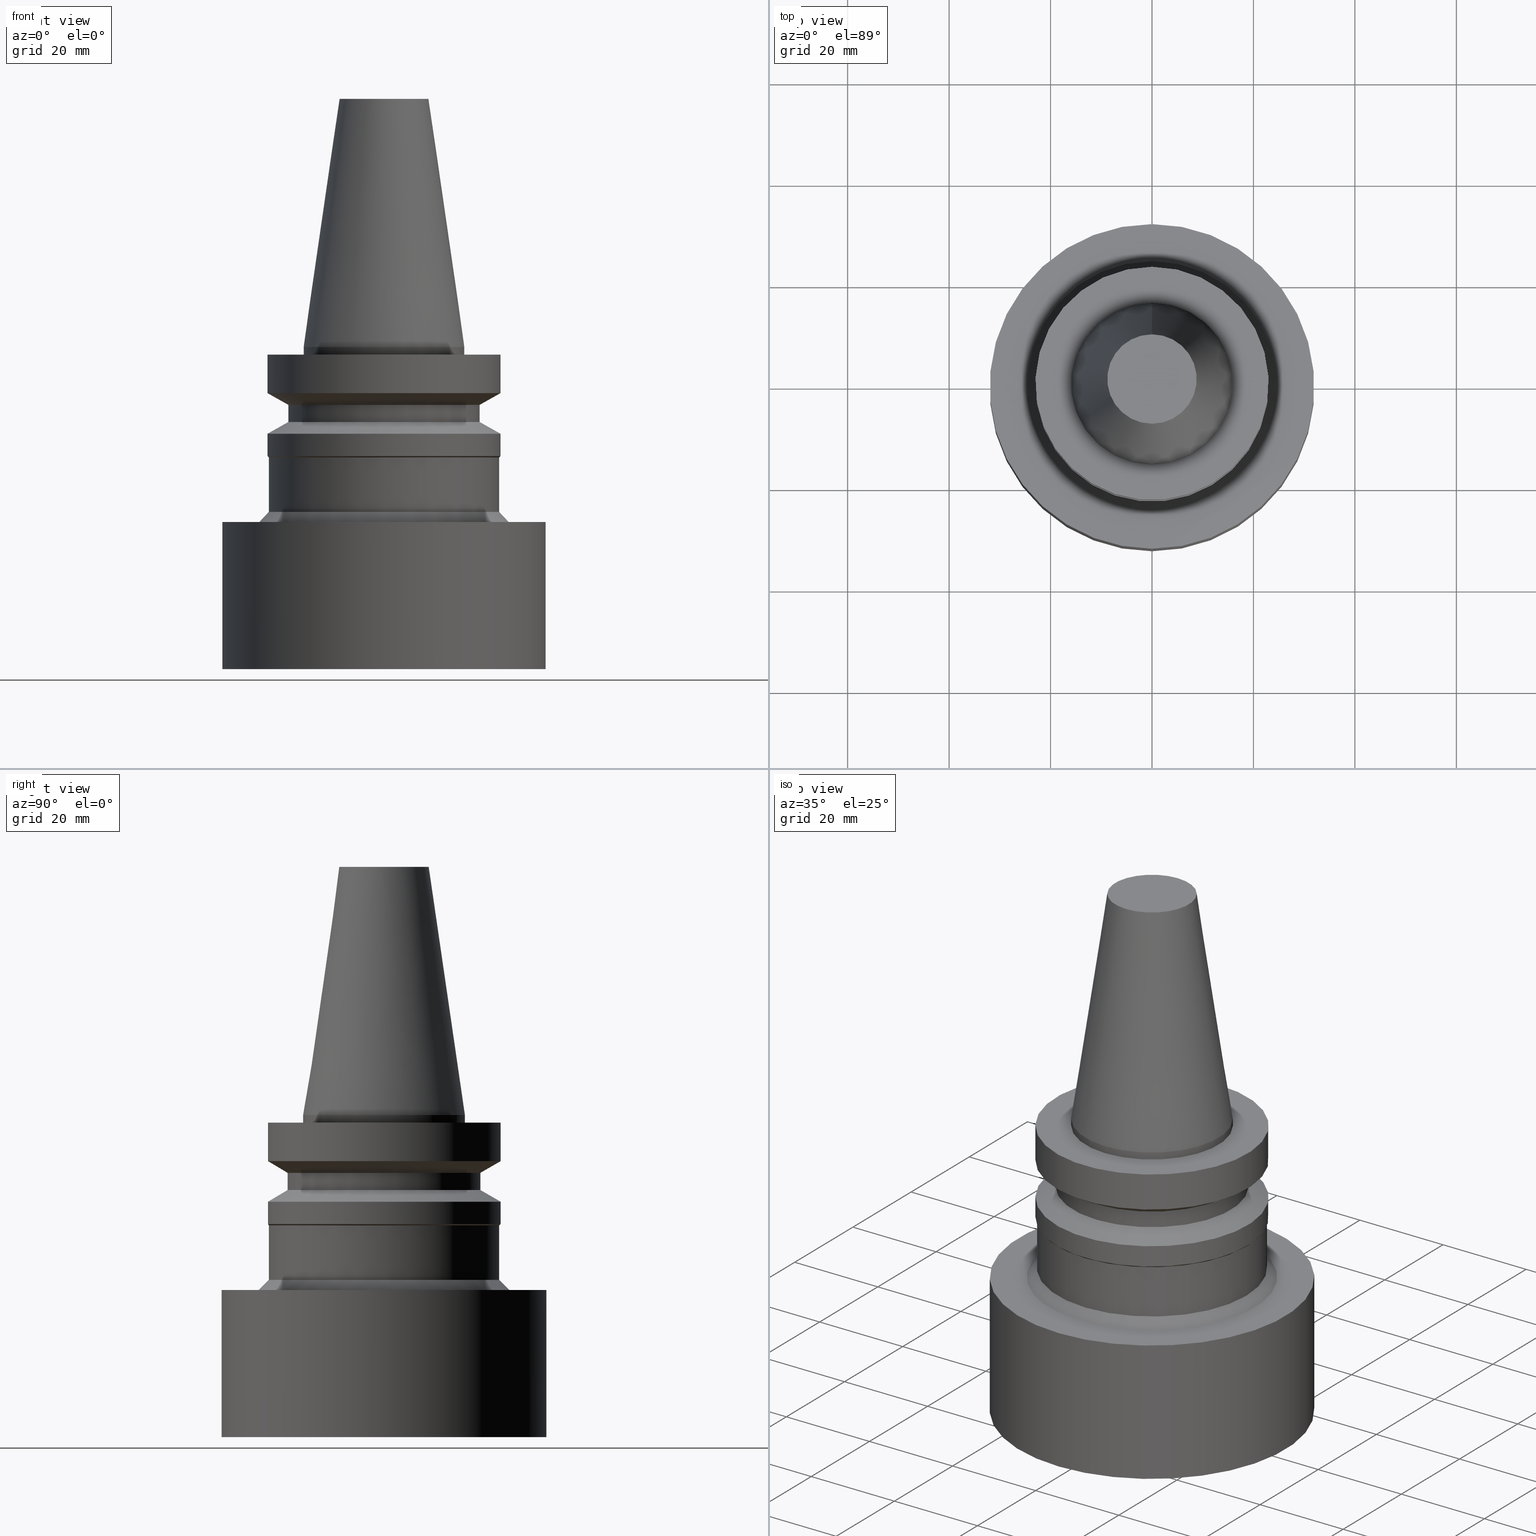
[diagram: canonical four-view strip — front | top / right | iso, engineering-drawing reading convention]
A machine part, canonical four-view strip (front | top / right | iso — engineering-drawing reading convention). The complete STEP part file that produces these views, byte-faithful:
ISO-10303-21;
HEADER;
FILE_DESCRIPTION((''),'1');
FILE_NAME('//Big_tech03/bigt/Translate/21_\X2\8F2A90ED7DDA\X0\-DXF/21_CK\X2\30DC30FC30EA30F330B030B730B930C630E0\X0\/01_CK\X2\30D930FC30B930DB30EB30C0\X0\ CK/BT/BT30/BT30-CK6-135.stp','2012-05-17T04:34:53',(''),(''),'Spatial Interop R18','Kubotek KeyCreator V8.5.1 (14335)',' ');
FILE_SCHEMA(('CONFIG_CONTROL_DESIGN'));
ENDSEC;
DATA;
#1=DESIGN_CONTEXT('',#27,'design');
#2=APPLICATION_PROTOCOL_DEFINITION('INTERNATIONAL STANDARD','config_control_design',1994,#27);
#3=PRODUCT_CATEGORY_RELATIONSHIP('NONE','NONE',#28,#29);
#4=DATE_AND_TIME(#30,#31);
#5=DATE_TIME_ROLE('creation_date');
#6=DATE_TIME_ROLE('classification_date');
#7=PERSON_AND_ORGANIZATION_ROLE('creator');
#8=PERSON_AND_ORGANIZATION_ROLE('design_supplier');
#9=PERSON_AND_ORGANIZATION_ROLE('classification_officer');
#10=PERSON_AND_ORGANIZATION_ROLE('design_owner');
#11=APPROVAL_PERSON_ORGANIZATION(#32,#33,#34);
#12=APPROVAL_DATE_TIME(#4,#33);
#13=CC_DESIGN_APPROVAL(#33,(#35,#36,#37));
#14=CC_DESIGN_DATE_AND_TIME_ASSIGNMENT(#4,#5,(#37));
#15=CC_DESIGN_DATE_AND_TIME_ASSIGNMENT(#4,#6,(#35));
#16=CC_DESIGN_PERSON_AND_ORGANIZATION_ASSIGNMENT(#32,#10,(#38));
#17=CC_DESIGN_PERSON_AND_ORGANIZATION_ASSIGNMENT(#32,#7,(#37));
#18=CC_DESIGN_PERSON_AND_ORGANIZATION_ASSIGNMENT(#32,#7,(#36));
#19=CC_DESIGN_PERSON_AND_ORGANIZATION_ASSIGNMENT(#32,#8,(#36));
#20=CC_DESIGN_SECURITY_CLASSIFICATION(#35,(#36));
#21=CC_DESIGN_PERSON_AND_ORGANIZATION_ASSIGNMENT(#32,#9,(#35));
#22=SHAPE_DEFINITION_REPRESENTATION(#39,#40);
#23= (GEOMETRIC_REPRESENTATION_CONTEXT(3)GLOBAL_UNCERTAINTY_ASSIGNED_CONTEXT((#43))GLOBAL_UNIT_ASSIGNED_CONTEXT((#45,#46,#47))REPRESENTATION_CONTEXT('NONE','WORKSPACE'));
#27=APPLICATION_CONTEXT('CONFIGURATION CONTROLLED 3D DESIGNS OF MECHANICAL PARTS AND ASSEMBLIES');
#28=PRODUCT_CATEGORY('part','NONE');
#29=PRODUCT_RELATED_PRODUCT_CATEGORY('detail',' ',(#38));
#30=CALENDAR_DATE(2012,17,4);
#31=LOCAL_TIME(13,34,53.0,#49);
#32=PERSON_AND_ORGANIZATION(#50,#51);
#33=APPROVAL(#52,'SOLID MODEL');
#34=APPROVAL_ROLE('APPROVED');
#35=SECURITY_CLASSIFICATION('','',#53);
#36=PRODUCT_DEFINITION_FORMATION_WITH_SPECIFIED_SOURCE(' ','NONE',#38,.NOT_KNOWN.);
#37=PRODUCT_DEFINITION('NONE','NONE',#36,#1);
#38=PRODUCT('1','1','PART-1-DESC',(#54));
#39=PRODUCT_DEFINITION_SHAPE('NONE','NONE',#37);
#40=ADVANCED_BREP_SHAPE_REPRESENTATION('1',(#55,#56),#23);
#43=UNCERTAINTY_MEASURE_WITH_UNIT(LENGTH_MEASURE(1.0E-006),#45,'','');
#45= (CONVERSION_BASED_UNIT('MILLIMETRE',#59)LENGTH_UNIT()NAMED_UNIT(#62));
#46= (NAMED_UNIT(#64)PLANE_ANGLE_UNIT()SI_UNIT($,.RADIAN.));
#47= (NAMED_UNIT(#64)SOLID_ANGLE_UNIT()SI_UNIT($,.STERADIAN.));
#49=COORDINATED_UNIVERSAL_TIME_OFFSET(9,0,.AHEAD.);
#50=PERSON('','UNSPECIFIED',$,$,$,$);
#51=ORGANIZATION('UNSPECIFIED','UNSPECIFIED','UNSPECIFIED');
#52=APPROVAL_STATUS('approved');
#53=SECURITY_CLASSIFICATION_LEVEL('unclassified');
#54=MECHANICAL_CONTEXT('',#27,'mechanical');
#55=MANIFOLD_SOLID_BREP('1',#70);
#56=AXIS2_PLACEMENT_3D('',#71,#72,#73);
#59=LENGTH_MEASURE_WITH_UNIT(LENGTH_MEASURE(1.0),#74);
#62=DIMENSIONAL_EXPONENTS(1.0,0.0,0.0,0.0,0.0,0.0,0.0);
#64=DIMENSIONAL_EXPONENTS(0.0,0.0,0.0,0.0,0.0,0.0,0.0);
#70=CLOSED_SHELL('',(#75,#76,#77,#78,#79,#80,#81,#82,#83,#84,#85,#86,#87,#88,#89));
#71=CARTESIAN_POINT('',(0.0,0.0,0.0));
#72=DIRECTION('',(0.0,0.0,1.0));
#73=DIRECTION('',(1.0,0.0,0.0));
#74= (NAMED_UNIT(#62)LENGTH_UNIT()SI_UNIT(.MILLI.,.METRE.));
#75=ADVANCED_FACE('',(#91),#92,.T.);
#76=ADVANCED_FACE('',(#93),#94,.T.);
#77=ADVANCED_FACE('',(#95,#96),#97,.T.);
#78=ADVANCED_FACE('',(#98,#99),#100,.T.);
#79=ADVANCED_FACE('',(#101,#102),#103,.T.);
#80=ADVANCED_FACE('',(#104,#105),#106,.T.);
#81=ADVANCED_FACE('',(#107,#108),#109,.T.);
#82=ADVANCED_FACE('',(#110,#111),#112,.T.);
#83=ADVANCED_FACE('',(#113,#114),#115,.T.);
#84=ADVANCED_FACE('',(#116,#117),#118,.T.);
#85=ADVANCED_FACE('',(#119,#120),#121,.T.);
#86=ADVANCED_FACE('',(#122,#123),#124,.T.);
#87=ADVANCED_FACE('',(#125,#126),#127,.T.);
#88=ADVANCED_FACE('',(#128,#129),#130,.T.);
#89=ADVANCED_FACE('',(#131,#132),#133,.T.);
#91=FACE_OUTER_BOUND('',#134,.T.);
#92=PLANE('',#135);
#93=FACE_OUTER_BOUND('',#136,.T.);
#94=PLANE('',#137);
#95=FACE_BOUND('',#138,.T.);
#96=FACE_BOUND('',#139,.T.);
#97=CONICAL_SURFACE('',#140,12.3822097314519,0.14481587303071);
#98=FACE_BOUND('',#141,.T.);
#99=FACE_BOUND('',#142,.T.);
#100=CYLINDRICAL_SURFACE('',#143,15.9479189999998);
#101=FACE_OUTER_BOUND('',#144,.T.);
#102=FACE_BOUND('',#145,.T.);
#103=PLANE('',#146);
#104=FACE_BOUND('',#147,.T.);
#105=FACE_BOUND('',#148,.T.);
#106=CYLINDRICAL_SURFACE('',#149,23.0);
#107=FACE_BOUND('',#150,.T.);
#108=FACE_BOUND('',#151,.T.);
#109=CONICAL_SURFACE('',#152,21.0,1.04719739053406);
#110=FACE_BOUND('',#153,.T.);
#111=FACE_BOUND('',#154,.T.);
#112=CYLINDRICAL_SURFACE('',#155,19.0);
#113=FACE_BOUND('',#156,.T.);
#114=FACE_BOUND('',#157,.T.);
#115=CONICAL_SURFACE('',#158,21.0,1.04719746294071);
#116=FACE_BOUND('',#159,.T.);
#117=FACE_BOUND('',#160,.T.);
#118=CYLINDRICAL_SURFACE('',#161,23.0);
#119=FACE_BOUND('',#162,.T.);
#120=FACE_BOUND('',#163,.T.);
#121=CONICAL_SURFACE('',#164,22.85,0.785398163397448);
#122=FACE_BOUND('',#165,.T.);
#123=FACE_BOUND('',#166,.T.);
#124=CYLINDRICAL_SURFACE('',#167,22.7);
#125=FACE_BOUND('',#168,.T.);
#126=FACE_BOUND('',#169,.T.);
#127=CONICAL_SURFACE('',#170,23.7,0.785398163397448);
#128=FACE_OUTER_BOUND('',#171,.T.);
#129=FACE_BOUND('',#172,.T.);
#130=PLANE('',#173);
#131=FACE_BOUND('',#174,.T.);
#132=FACE_BOUND('',#175,.T.);
#133=CYLINDRICAL_SURFACE('',#176,32.0);
#134=EDGE_LOOP('',(#177));
#135=AXIS2_PLACEMENT_3D('',#178,#179,#180);
#136=EDGE_LOOP('',(#181));
#137=AXIS2_PLACEMENT_3D('',#182,#183,#184);
#138=EDGE_LOOP('',(#185));
#139=EDGE_LOOP('',(#186));
#140=AXIS2_PLACEMENT_3D('',#187,#188,#189);
#141=EDGE_LOOP('',(#190));
#142=EDGE_LOOP('',(#191));
#143=AXIS2_PLACEMENT_3D('',#192,#193,#194);
#144=EDGE_LOOP('',(#195));
#145=EDGE_LOOP('',(#196));
#146=AXIS2_PLACEMENT_3D('',#197,#198,#199);
#147=EDGE_LOOP('',(#200));
#148=EDGE_LOOP('',(#201));
#149=AXIS2_PLACEMENT_3D('',#202,#203,#204);
#150=EDGE_LOOP('',(#205));
#151=EDGE_LOOP('',(#206));
#152=AXIS2_PLACEMENT_3D('',#207,#208,#209);
#153=EDGE_LOOP('',(#210));
#154=EDGE_LOOP('',(#211));
#155=AXIS2_PLACEMENT_3D('',#212,#213,#214);
#156=EDGE_LOOP('',(#215));
#157=EDGE_LOOP('',(#216));
#158=AXIS2_PLACEMENT_3D('',#217,#218,#219);
#159=EDGE_LOOP('',(#220));
#160=EDGE_LOOP('',(#221));
#161=AXIS2_PLACEMENT_3D('',#222,#223,#224);
#162=EDGE_LOOP('',(#225));
#163=EDGE_LOOP('',(#226));
#164=AXIS2_PLACEMENT_3D('',#227,#228,#229);
#165=EDGE_LOOP('',(#230));
#166=EDGE_LOOP('',(#231));
#167=AXIS2_PLACEMENT_3D('',#232,#233,#234);
#168=EDGE_LOOP('',(#235));
#169=EDGE_LOOP('',(#236));
#170=AXIS2_PLACEMENT_3D('',#237,#238,#239);
#171=EDGE_LOOP('',(#240));
#172=EDGE_LOOP('',(#241));
#173=AXIS2_PLACEMENT_3D('',#242,#243,#244);
#174=EDGE_LOOP('',(#245));
#175=EDGE_LOOP('',(#246));
#176=AXIS2_PLACEMENT_3D('',#247,#248,#249);
#177=ORIENTED_EDGE('',*,*,#250,.T.);
#178=CARTESIAN_POINT('',(3.91886975727153E-015,16.0,-64.0));
#179=DIRECTION('',(6.12323399573677E-017,1.22464679914735E-016,-1.0));
#180=DIRECTION('',(-1.23259516440783E-032,1.0,1.22464679914735E-016));
#181=ORIENTED_EDGE('',*,*,#251,.F.);
#182=CARTESIAN_POINT('',(-2.9636452539366E-015,4.40825023145189,48.4));
#183=DIRECTION('',(-6.12323399573677E-017,-1.22464679914735E-016,1.0));
#184=DIRECTION('',(1.23259516440783E-032,-1.0,-1.22464679914735E-016));
#185=ORIENTED_EDGE('',*,*,#252,.F.);
#186=ORIENTED_EDGE('',*,*,#251,.T.);
#187=CARTESIAN_POINT('',(-1.46651454197896E-015,-2.93302908395791E-015,23.95));
#188=DIRECTION('',(6.12323399573677E-017,1.22464679914735E-016,-1.0));
#189=DIRECTION('',(-1.23259516440783E-032,1.0,1.22464679914735E-016));
#190=ORIENTED_EDGE('',*,*,#253,.F.);
#191=ORIENTED_EDGE('',*,*,#252,.T.);
#192=CARTESIAN_POINT('',(7.65404249467096E-017,1.53080849893419E-016,-1.25));
#193=DIRECTION('',(-6.12323399573677E-017,-1.22464679914735E-016,1.0));
#194=DIRECTION('',(-1.23259516440783E-032,1.0,1.22464679914735E-016));
#195=ORIENTED_EDGE('',*,*,#254,.F.);
#196=ORIENTED_EDGE('',*,*,#253,.T.);
#197=CARTESIAN_POINT('',(1.22464679914735E-016,19.4739594999998,-2.0));
#198=DIRECTION('',(-6.12323399573677E-017,-1.22464679914735E-016,1.0));
#199=DIRECTION('',(1.23259516440783E-032,-1.0,-1.22464679914735E-016));
#200=ORIENTED_EDGE('',*,*,#255,.F.);
#201=ORIENTED_EDGE('',*,*,#254,.T.);
#202=CARTESIAN_POINT('',(3.55147560781314E-016,7.10295121562628E-016,-5.79999982082314));
#203=DIRECTION('',(-6.12323399573677E-017,-1.22464679914735E-016,1.0));
#204=DIRECTION('',(-1.23259516440783E-032,1.0,1.22464679914735E-016));
#205=ORIENTED_EDGE('',*,*,#256,.F.);
#206=ORIENTED_EDGE('',*,*,#255,.T.);
#207=CARTESIAN_POINT('',(6.58535483796871E-016,1.31707096759374E-015,-10.754700608459));
#208=DIRECTION('',(-6.12323399573677E-017,-1.22464679914735E-016,1.0));
#209=DIRECTION('',(-1.23259516440783E-032,1.0,1.22464679914735E-016));
#210=ORIENTED_EDGE('',*,*,#257,.F.);
#211=ORIENTED_EDGE('',*,*,#256,.T.);
#212=CARTESIAN_POINT('',(8.32759823468329E-016,1.66551964693666E-015,-13.600000000786));
#213=DIRECTION('',(-6.12323399573677E-017,-1.22464679914735E-016,1.0));
#214=DIRECTION('',(-1.23259516440783E-032,1.0,1.22464679914735E-016));
#215=ORIENTED_EDGE('',*,*,#258,.F.);
#216=ORIENTED_EDGE('',*,*,#257,.T.);
#217=CARTESIAN_POINT('',(1.00698415131677E-015,2.01396830263355E-015,-16.4452992000285));
#218=DIRECTION('',(6.12323399573677E-017,1.22464679914735E-016,-1.0));
#219=DIRECTION('',(-1.23259516440783E-032,1.0,1.22464679914735E-016));
#220=ORIENTED_EDGE('',*,*,#259,.F.);
#221=ORIENTED_EDGE('',*,*,#258,.T.);
#222=CARTESIAN_POINT('',(1.21240033035241E-015,2.42480066070483E-015,-19.7999999868784));
#223=DIRECTION('',(-6.12323399573677E-017,-1.22464679914735E-016,1.0));
#224=DIRECTION('',(-1.23259516440783E-032,1.0,1.22464679914735E-016));
#225=ORIENTED_EDGE('',*,*,#260,.F.);
#226=ORIENTED_EDGE('',*,*,#259,.T.);
#227=CARTESIAN_POINT('',(1.35629633005569E-015,2.71259266011139E-015,-22.15));
#228=DIRECTION('',(-6.12323399573677E-017,-1.22464679914735E-016,1.0));
#229=DIRECTION('',(-1.23259516440783E-032,1.0,1.22464679914735E-016));
#230=ORIENTED_EDGE('',*,*,#261,.F.);
#231=ORIENTED_EDGE('',*,*,#260,.T.);
#232=CARTESIAN_POINT('',(1.69307419982122E-015,3.38614839964243E-015,-27.65));
#233=DIRECTION('',(-6.12323399573677E-017,-1.22464679914735E-016,1.0));
#234=DIRECTION('',(-1.23259516440783E-032,1.0,1.22464679914735E-016));
#235=ORIENTED_EDGE('',*,*,#262,.F.);
#236=ORIENTED_EDGE('',*,*,#261,.T.);
#237=CARTESIAN_POINT('',(2.0818995585505E-015,4.163799117101E-015,-34.0));
#238=DIRECTION('',(6.12323399573677E-017,1.22464679914735E-016,-1.0));
#239=DIRECTION('',(-1.23259516440783E-032,1.0,1.22464679914735E-016));
#240=ORIENTED_EDGE('',*,*,#263,.F.);
#241=ORIENTED_EDGE('',*,*,#262,.T.);
#242=CARTESIAN_POINT('',(2.14313189850787E-015,28.35,-35.0));
#243=DIRECTION('',(-6.12323399573677E-017,-1.22464679914735E-016,1.0));
#244=DIRECTION('',(1.23259516440783E-032,-1.0,-1.22464679914735E-016));
#245=ORIENTED_EDGE('',*,*,#250,.F.);
#246=ORIENTED_EDGE('',*,*,#263,.T.);
#247=CARTESIAN_POINT('',(3.0310008278897E-015,6.0620016557794E-015,-49.5));
#248=DIRECTION('',(-6.12323399573677E-017,-1.22464679914735E-016,1.0));
#249=DIRECTION('',(-1.23259516440783E-032,1.0,1.22464679914735E-016));
#250=EDGE_CURVE('',#264,#264,#265,.T.);
#251=EDGE_CURVE('',#266,#266,#267,.T.);
#252=EDGE_CURVE('',#268,#268,#269,.T.);
#253=EDGE_CURVE('',#270,#270,#271,.T.);
#254=EDGE_CURVE('',#272,#272,#273,.T.);
#255=EDGE_CURVE('',#274,#274,#275,.T.);
#256=EDGE_CURVE('',#276,#276,#277,.T.);
#257=EDGE_CURVE('',#278,#278,#279,.T.);
#258=EDGE_CURVE('',#280,#280,#281,.T.);
#259=EDGE_CURVE('',#282,#282,#283,.T.);
#260=EDGE_CURVE('',#284,#284,#285,.T.);
#261=EDGE_CURVE('',#286,#286,#287,.T.);
#262=EDGE_CURVE('',#288,#288,#289,.T.);
#263=EDGE_CURVE('',#290,#290,#291,.T.);
#264=VERTEX_POINT('',#292);
#265=CIRCLE('',#293,32.0);
#266=VERTEX_POINT('',#294);
#267=CIRCLE('',#295,8.8165004629038);
#268=VERTEX_POINT('',#296);
#269=CIRCLE('',#297,15.947919);
#270=VERTEX_POINT('',#298);
#271=CIRCLE('',#299,15.9479189999996);
#272=VERTEX_POINT('',#300);
#273=CIRCLE('',#301,23.0);
#274=VERTEX_POINT('',#302);
#275=CIRCLE('',#303,23.0);
#276=VERTEX_POINT('',#304);
#277=CIRCLE('',#305,19.0);
#278=VERTEX_POINT('',#306);
#279=CIRCLE('',#307,19.0);
#280=VERTEX_POINT('',#308);
#281=CIRCLE('',#309,23.0);
#282=VERTEX_POINT('',#310);
#283=CIRCLE('',#311,23.0);
#284=VERTEX_POINT('',#312);
#285=CIRCLE('',#313,22.7);
#286=VERTEX_POINT('',#314);
#287=CIRCLE('',#315,22.7);
#288=VERTEX_POINT('',#316);
#289=CIRCLE('',#317,24.7);
#290=VERTEX_POINT('',#318);
#291=CIRCLE('',#319,32.0);
#292=CARTESIAN_POINT('',(3.91886975727153E-015,32.0,-64.0));
#293=AXIS2_PLACEMENT_3D('',#320,#321,#322);
#294=CARTESIAN_POINT('',(-2.9636452539366E-015,8.81650046290379,48.4));
#295=AXIS2_PLACEMENT_3D('',#323,#324,#325);
#296=CARTESIAN_POINT('',(3.06161699786836E-017,15.947919,-0.499999999999998));
#297=AXIS2_PLACEMENT_3D('',#326,#327,#328);
#298=CARTESIAN_POINT('',(1.22464679914735E-016,15.9479189999996,-2.0));
#299=AXIS2_PLACEMENT_3D('',#329,#330,#331);
#300=CARTESIAN_POINT('',(1.22464679914735E-016,23.0,-2.0));
#301=AXIS2_PLACEMENT_3D('',#332,#333,#334);
#302=CARTESIAN_POINT('',(5.87830441647893E-016,23.0,-9.59999964164628));
#303=AXIS2_PLACEMENT_3D('',#335,#336,#337);
#304=CARTESIAN_POINT('',(7.29240525945849E-016,19.0,-11.9094015752717));
#305=AXIS2_PLACEMENT_3D('',#338,#339,#340);
#306=CARTESIAN_POINT('',(9.36279120990808E-016,19.0,-15.2905984263003));
#307=AXIS2_PLACEMENT_3D('',#341,#342,#343);
#308=CARTESIAN_POINT('',(1.07768918164274E-015,23.0,-17.5999999737568));
#309=AXIS2_PLACEMENT_3D('',#344,#345,#346);
#310=CARTESIAN_POINT('',(1.34711147906209E-015,23.0,-22.0));
#311=AXIS2_PLACEMENT_3D('',#347,#348,#349);
#312=CARTESIAN_POINT('',(1.3654811810493E-015,22.7,-22.3));
#313=AXIS2_PLACEMENT_3D('',#350,#351,#352);
#314=CARTESIAN_POINT('',(2.02066721859313E-015,22.7,-33.0));
#315=AXIS2_PLACEMENT_3D('',#353,#354,#355);
#316=CARTESIAN_POINT('',(2.14313189850787E-015,24.7,-35.0));
#317=AXIS2_PLACEMENT_3D('',#356,#357,#358);
#318=CARTESIAN_POINT('',(2.14313189850787E-015,32.0,-35.0));
#319=AXIS2_PLACEMENT_3D('',#359,#360,#361);
#320=CARTESIAN_POINT('',(3.91886975727153E-015,7.83773951454306E-015,-64.0));
#321=DIRECTION('',(6.12323399573677E-017,1.22464679914735E-016,-1.0));
#322=DIRECTION('',(-1.23259516440783E-032,1.0,1.22464679914735E-016));
#323=CARTESIAN_POINT('',(-2.9636452539366E-015,-5.92729050787319E-015,48.4));
#324=DIRECTION('',(6.12323399573677E-017,1.22464679914735E-016,-1.0));
#325=DIRECTION('',(-1.23259516440783E-032,1.0,1.22464679914735E-016));
#326=CARTESIAN_POINT('',(3.06161699786838E-017,6.12323399573676E-017,-0.5));
#327=DIRECTION('',(6.12323399573677E-017,1.22464679914735E-016,-1.0));
#328=DIRECTION('',(-1.23259516440783E-032,1.0,1.22464679914735E-016));
#329=CARTESIAN_POINT('',(1.22464679914735E-016,2.44929359829471E-016,-2.0));
#330=DIRECTION('',(6.12323399573677E-017,1.22464679914735E-016,-1.0));
#331=DIRECTION('',(-1.23259516440783E-032,1.0,1.22464679914735E-016));
#332=CARTESIAN_POINT('',(1.22464679914735E-016,2.44929359829471E-016,-2.0));
#333=DIRECTION('',(6.12323399573677E-017,1.22464679914735E-016,-1.0));
#334=DIRECTION('',(-1.23259516440783E-032,1.0,1.22464679914735E-016));
#335=CARTESIAN_POINT('',(5.87830441647893E-016,1.17566088329579E-015,-9.59999964164628));
#336=DIRECTION('',(6.12323399573677E-017,1.22464679914735E-016,-1.0));
#337=DIRECTION('',(-1.23259516440783E-032,1.0,1.22464679914735E-016));
#338=CARTESIAN_POINT('',(7.29240525945849E-016,1.4584810518917E-015,-11.9094015752717));
#339=DIRECTION('',(6.12323399573677E-017,1.22464679914735E-016,-1.0));
#340=DIRECTION('',(-1.23259516440783E-032,1.0,1.22464679914735E-016));
#341=CARTESIAN_POINT('',(9.36279120990809E-016,1.87255824198162E-015,-15.2905984263003));
#342=DIRECTION('',(6.12323399573677E-017,1.22464679914735E-016,-1.0));
#343=DIRECTION('',(-1.23259516440783E-032,1.0,1.22464679914735E-016));
#344=CARTESIAN_POINT('',(1.07768918164274E-015,2.15537836328548E-015,-17.5999999737568));
#345=DIRECTION('',(6.12323399573677E-017,1.22464679914735E-016,-1.0));
#346=DIRECTION('',(-1.23259516440783E-032,1.0,1.22464679914735E-016));
#347=CARTESIAN_POINT('',(1.34711147906209E-015,2.69422295812418E-015,-22.0));
#348=DIRECTION('',(6.12323399573677E-017,1.22464679914735E-016,-1.0));
#349=DIRECTION('',(-1.23259516440783E-032,1.0,1.22464679914735E-016));
#350=CARTESIAN_POINT('',(1.3654811810493E-015,2.7309623620986E-015,-22.3));
#351=DIRECTION('',(6.12323399573677E-017,1.22464679914735E-016,-1.0));
#352=DIRECTION('',(-1.23259516440783E-032,1.0,1.22464679914735E-016));
#353=CARTESIAN_POINT('',(2.02066721859313E-015,4.04133443718627E-015,-33.0));
#354=DIRECTION('',(6.12323399573677E-017,1.22464679914735E-016,-1.0));
#355=DIRECTION('',(-1.23259516440783E-032,1.0,1.22464679914735E-016));
#356=CARTESIAN_POINT('',(2.14313189850787E-015,4.28626379701574E-015,-35.0));
#357=DIRECTION('',(6.12323399573677E-017,1.22464679914735E-016,-1.0));
#358=DIRECTION('',(-1.23259516440783E-032,1.0,1.22464679914735E-016));
#359=CARTESIAN_POINT('',(2.14313189850787E-015,4.28626379701574E-015,-35.0));
#360=DIRECTION('',(6.12323399573677E-017,1.22464679914735E-016,-1.0));
#361=DIRECTION('',(-1.23259516440783E-032,1.0,1.22464679914735E-016));
ENDSEC;
END-ISO-10303-21;
